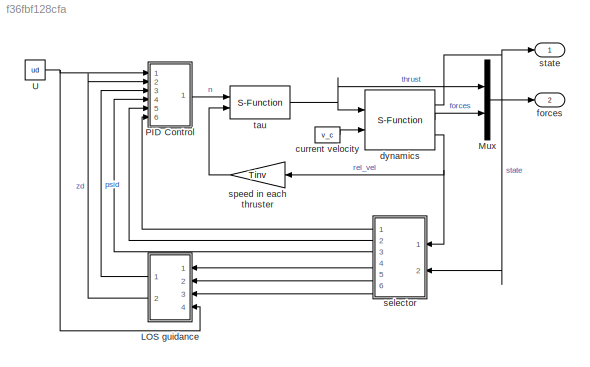
MODEL slx_f36fbf128cfa
KIND model
CONFIG AbsTol = auto
CONFIG EnableMultiTasking = off
CONFIG FixedStep = mdl.tStep
CONFIG MaxStep = auto
CONFIG MinStep = auto
CONFIG RelTol = 1e-3
CONFIG SampleTimeConstraint = Unconstrained
CONFIG Solver = ode4
CONFIG SolverName = ode4
CONFIG StartTime = 0.0
CONFIG StopTime = 10.0
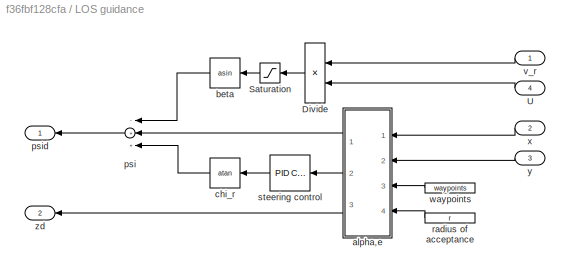
BLOCK [SubSystem] LOS guidance
  Ports = [4, 2]
  RequestExecContextInheritance = off
  Variant = off
BLOCK [Product] LOS guidance/Divide
  InputSameDT = off
  Inputs = */
  OutDataTypeStr = Inherit: Inherit via internal rule
  Ports = [2, 1]
  RndMeth = Floor
  SaturateOnIntegerOverflow = off
BLOCK [Saturate] LOS guidance/Saturation
  InputPortMap = u0
  LowerLimit = -1
  Ports = [1, 1]
  UpperLimit = 1
BLOCK [Inport] LOS guidance/U
  IconDisplay = Port number
  Port = 4
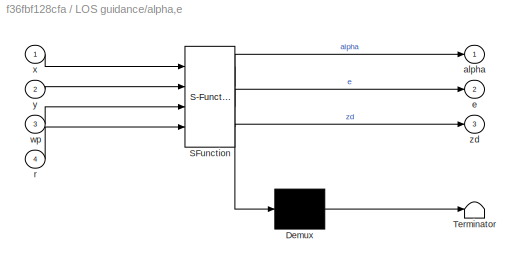
BLOCK [SubSystem] LOS guidance/alpha,e
  ErrorFcn = Stateflow.Translate.translate
  PermitHierarchicalResolution = ExplicitOnly
  Ports = [4, 3]
  RequestExecContextInheritance = off
  SFBlockType = MATLAB Function
  TreatAsAtomicUnit = on
  Variant = off
BLOCK [Demux] LOS guidance/alpha,e/ Demux 
  Outputs = 1
  Ports = [1, 1]
BLOCK [S-Function] LOS guidance/alpha,e/ SFunction 
  EnableBusSupport = on
  FunctionName = sf_sfun
  PortCounts = [4 4]
  Ports = [4, 4]
  SFcnIsStateOwnerBlock = off
  SFunctionDeploymentMode = off
  Tag = Stateflow S-Function rovSim_los 1
BLOCK [Terminator] LOS guidance/alpha,e/ Terminator 
BLOCK [Outport] LOS guidance/alpha,e/alpha
  IconDisplay = Port number
BLOCK [Outport] LOS guidance/alpha,e/e
  IconDisplay = Port number
  Port = 2
BLOCK [Inport] LOS guidance/alpha,e/r
  IconDisplay = Port number
  Port = 4
BLOCK [Inport] LOS guidance/alpha,e/wp
  IconDisplay = Port number
  Port = 3
BLOCK [Inport] LOS guidance/alpha,e/x
  IconDisplay = Port number
BLOCK [Inport] LOS guidance/alpha,e/y
  IconDisplay = Port number
  Port = 2
BLOCK [Outport] LOS guidance/alpha,e/zd
  IconDisplay = Port number
  Port = 3
BLOCK [Trigonometry] LOS guidance/beta
  Operator = asin
  Ports = [1, 1]
BLOCK [Trigonometry] LOS guidance/chi_r
  Operator = atan
  Ports = [1, 1]
BLOCK [Sum] LOS guidance/psi
  InputSameDT = off
  Inputs = -++
  OutDataTypeStr = Inherit: Inherit via internal rule
  Ports = [3, 1]
  SaturateOnIntegerOverflow = off
BLOCK [Outport] LOS guidance/psid
  IconDisplay = Port number
BLOCK [Constant] LOS guidance/radius of acceptance
  Value = r
BLOCK [Reference] LOS guidance/steering control  REF=simulink/Continuous/PID Controller
  Ports = [1, 1]
  SourceBlock = simulink/Continuous/PID Controller
  SourceProductBaseCode = SL
  SourceProductName = Simulink
  SourceType = PID 1dof
BLOCK [Inport] LOS guidance/v_r
  IconDisplay = Port number
BLOCK [Constant] LOS guidance/waypoints
  Value = waypoints
BLOCK [Inport] LOS guidance/x
  IconDisplay = Port number
  Port = 2
BLOCK [Inport] LOS guidance/y
  IconDisplay = Port number
  Port = 3
BLOCK [Outport] LOS guidance/zd
  IconDisplay = Port number
  Port = 2
BLOCK [Mux] Mux
  DisplayOption = bar
  Inputs = [6,18]
  Ports = [2, 1]
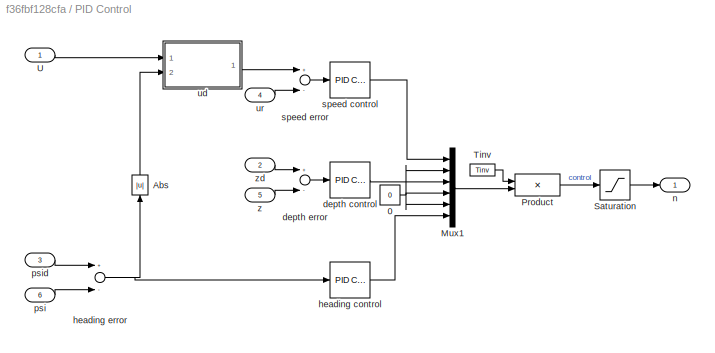
BLOCK [SubSystem] PID Control
  Ports = [6, 1]
  RequestExecContextInheritance = off
  Variant = off
BLOCK [Constant] PID Control/0
  Value = 0
BLOCK [Abs] PID Control/Abs
  SaturateOnIntegerOverflow = off
BLOCK [Mux] PID Control/Mux1
  DisplayOption = bar
  Inputs = 6
  Ports = [6, 1]
BLOCK [Product] PID Control/Product
  InputSameDT = off
  Multiplication = Matrix(*)
  OutDataTypeStr = Inherit: Inherit via internal rule
  Ports = [2, 1]
  RndMeth = Floor
  SaturateOnIntegerOverflow = off
BLOCK [Saturate] PID Control/Saturation
  InputPortMap = u0
  LowerLimit = -n_max
  Ports = [1, 1]
  UpperLimit = n_max
BLOCK [Constant] PID Control/Tinv
  Value = Tinv
  VectorParams1D = off
BLOCK [Inport] PID Control/U
  IconDisplay = Port number
BLOCK [Reference] PID Control/depth control  REF=simulink/Continuous/PID Controller
  Ports = [1, 1]
  SourceBlock = simulink/Continuous/PID Controller
  SourceProductBaseCode = SL
  SourceProductName = Simulink
  SourceType = PID 1dof
BLOCK [Sum] PID Control/depth error
  InputSameDT = off
  Inputs = +-
  OutDataTypeStr = Inherit: Inherit via internal rule
  Ports = [2, 1]
  SaturateOnIntegerOverflow = off
BLOCK [Reference] PID Control/heading control  REF=simulink/Continuous/PID Controller
  Ports = [1, 1]
  SourceBlock = simulink/Continuous/PID Controller
  SourceProductBaseCode = SL
  SourceProductName = Simulink
  SourceType = PID 1dof
BLOCK [Sum] PID Control/heading error
  InputSameDT = off
  Inputs = +-
  OutDataTypeStr = Inherit: Inherit via internal rule
  Ports = [2, 1]
  SaturateOnIntegerOverflow = off
BLOCK [Outport] PID Control/n
  IconDisplay = Port number
BLOCK [Inport] PID Control/psi
  IconDisplay = Port number
  Port = 6
BLOCK [Inport] PID Control/psid
  IconDisplay = Port number
  Port = 3
BLOCK [Reference] PID Control/speed control  REF=simulink/Continuous/PID Controller
  Ports = [1, 1]
  SourceBlock = simulink/Continuous/PID Controller
  SourceProductBaseCode = SL
  SourceProductName = Simulink
  SourceType = PID 1dof
BLOCK [Sum] PID Control/speed error
  InputSameDT = off
  Inputs = +-
  OutDataTypeStr = Inherit: Inherit via internal rule
  Ports = [2, 1]
  SaturateOnIntegerOverflow = off
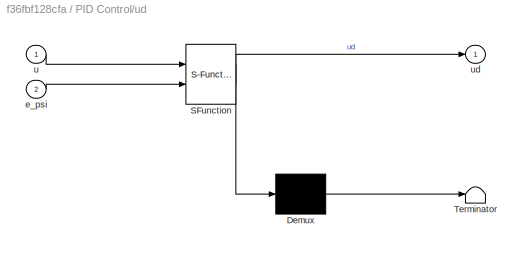
BLOCK [SubSystem] PID Control/ud
  ErrorFcn = Stateflow.Translate.translate
  PermitHierarchicalResolution = ExplicitOnly
  Ports = [2, 1]
  RequestExecContextInheritance = off
  SFBlockType = MATLAB Function
  TreatAsAtomicUnit = on
  Variant = off
BLOCK [Demux] PID Control/ud/ Demux 
  Outputs = 1
  Ports = [1, 1]
BLOCK [S-Function] PID Control/ud/ SFunction 
  EnableBusSupport = on
  FunctionName = sf_sfun
  PortCounts = [2 2]
  Ports = [2, 2]
  SFcnIsStateOwnerBlock = off
  SFunctionDeploymentMode = off
  Tag = Stateflow S-Function rovSim_los 2
BLOCK [Terminator] PID Control/ud/ Terminator 
BLOCK [Inport] PID Control/ud/e_psi
  IconDisplay = Port number
  Port = 2
BLOCK [Inport] PID Control/ud/u
  IconDisplay = Port number
BLOCK [Outport] PID Control/ud/ud
  IconDisplay = Port number
BLOCK [Inport] PID Control/ur
  IconDisplay = Port number
  Port = 4
BLOCK [Inport] PID Control/z
  IconDisplay = Port number
  Port = 5
BLOCK [Inport] PID Control/zd
  IconDisplay = Port number
  Port = 2
BLOCK [Constant] U
  Value = ud
BLOCK [Constant] current velocity
  Value = v_c
BLOCK [S-Function] dynamics
  EnableBusSupport = off
  FunctionName = uuv_dynamics
  Parameters = rov.weight,rov.buoyancy,rov.G,rov.B,ics,rov.inv_mass',rov.M_A',rov.M_RB',rov.D_L',rov.D_q'
  Ports = [2, 3]
  SFcnIsStateOwnerBlock = off
  SFunctionDeploymentMode = off
BLOCK [Outport] forces
  IconDisplay = Port number
  Port = 2
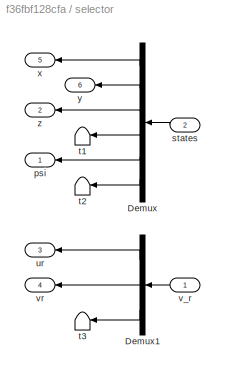
BLOCK [SubSystem] selector
  Ports = [2, 6]
  RequestExecContextInheritance = off
  Variant = off
BLOCK [Demux] selector/Demux
  DisplayOption = bar
  Outputs = [1,1,1,2,1,6]
  Ports = [1, 6]
BLOCK [Demux] selector/Demux1
  DisplayOption = bar
  Outputs = [1,1,4]
  Ports = [1, 3]
BLOCK [Outport] selector/psi
  IconDisplay = Port number
BLOCK [Inport] selector/states
  IconDisplay = Port number
  Port = 2
BLOCK [Terminator] selector/t1
BLOCK [Terminator] selector/t2
BLOCK [Terminator] selector/t3
BLOCK [Outport] selector/ur
  IconDisplay = Port number
  Port = 3
BLOCK [Inport] selector/v_r
  IconDisplay = Port number
BLOCK [Outport] selector/vr
  IconDisplay = Port number
  Port = 4
BLOCK [Outport] selector/x
  IconDisplay = Port number
  Port = 5
BLOCK [Outport] selector/y
  IconDisplay = Port number
  Port = 6
BLOCK [Outport] selector/z
  IconDisplay = Port number
  Port = 2
BLOCK [Gain] speed in each thruster
  Gain = Tinv
  Multiplication = Matrix(K*u)
  OutDataTypeStr = Inherit: Inherit via internal rule
  ParamDataTypeStr = Inherit: Inherit via internal rule
  SaturateOnIntegerOverflow = off
BLOCK [Outport] state
  IconDisplay = Port number
BLOCK [S-Function] tau
  EnableBusSupport = off
  FunctionName = rov_thrust
  Parameters = rov.density,rov.prop_diam,rov.K_T,rov.theta,rov.T'
  Ports = [2, 1]
  SFcnIsStateOwnerBlock = off
  SFunctionDeploymentMode = off
LINE LOS guidance/Divide:1 -> LOS guidance/Saturation:1
LINE LOS guidance/Saturation:1 -> LOS guidance/beta:1
LINE LOS guidance/U:1 -> LOS guidance/Divide:2
LINE LOS guidance/alpha,e:1 -> LOS guidance/psi:2
LINE LOS guidance/alpha,e:2 -> LOS guidance/steering control:1
LINE LOS guidance/alpha,e:3 -> LOS guidance/zd:1
LINE LOS guidance/beta:1 -> LOS guidance/psi:1
LINE LOS guidance/chi_r:1 -> LOS guidance/psi:3
LINE LOS guidance/psi:1 -> LOS guidance/psid:1
LINE LOS guidance/radius of acceptance:1 -> LOS guidance/alpha,e:4
LINE LOS guidance/steering control:1 -> LOS guidance/chi_r:1
LINE LOS guidance/v_r:1 -> LOS guidance/Divide:1
LINE LOS guidance/waypoints:1 -> LOS guidance/alpha,e:3
LINE LOS guidance/x:1 -> LOS guidance/alpha,e:1
LINE LOS guidance/y:1 -> LOS guidance/alpha,e:2
LINE LOS guidance:1 -> PID Control:3
LINE LOS guidance:2 -> PID Control:2
LINE Mux:1 -> forces:1
NET PID Control/0:1 -> PID Control/Mux1:2, PID Control/Mux1:4, PID Control/Mux1:5
LINE PID Control/Abs:1 -> PID Control/ud:2
LINE PID Control/Mux1:1 -> PID Control/Product:2
LINE PID Control/Product:1 -> PID Control/Saturation:1
LINE PID Control/Saturation:1 -> PID Control/n:1
LINE PID Control/Tinv:1 -> PID Control/Product:1
LINE PID Control/U:1 -> PID Control/ud:1
LINE PID Control/depth control:1 -> PID Control/Mux1:3
LINE PID Control/depth error:1 -> PID Control/depth control:1
LINE PID Control/heading control:1 -> PID Control/Mux1:6
NET PID Control/heading error:1 -> PID Control/Abs:1, PID Control/heading control:1
LINE PID Control/psi:1 -> PID Control/heading error:2
LINE PID Control/psid:1 -> PID Control/heading error:1
LINE PID Control/speed control:1 -> PID Control/Mux1:1
LINE PID Control/speed error:1 -> PID Control/speed control:1
LINE PID Control/ud:1 -> PID Control/speed error:1
LINE PID Control/ur:1 -> PID Control/speed error:2
LINE PID Control/z:1 -> PID Control/depth error:2
LINE PID Control/zd:1 -> PID Control/depth error:1
LINE PID Control:1 -> tau:1
NET U:1 -> LOS guidance:4, PID Control:1
LINE current velocity:1 -> dynamics:2
NET dynamics:1 -> selector:2, state:1
LINE dynamics:2 -> Mux:2
NET dynamics:3 -> selector:1, speed in each thruster:1
LINE selector/Demux1:1 -> selector/ur:1
LINE selector/Demux1:2 -> selector/vr:1
LINE selector/Demux1:3 -> selector/t3:1
LINE selector/Demux:1 -> selector/x:1
LINE selector/Demux:2 -> selector/y:1
LINE selector/Demux:3 -> selector/z:1
LINE selector/Demux:4 -> selector/t1:1
LINE selector/Demux:5 -> selector/psi:1
LINE selector/Demux:6 -> selector/t2:1
LINE selector/states:1 -> selector/Demux:1
LINE selector/v_r:1 -> selector/Demux1:1
LINE selector:1 -> PID Control:6
LINE selector:2 -> PID Control:5
LINE selector:3 -> PID Control:4
LINE selector:4 -> LOS guidance:1
LINE selector:5 -> LOS guidance:2
LINE selector:6 -> LOS guidance:3
LINE speed in each thruster:1 -> tau:2
NET tau:1 -> Mux:1, dynamics:1
note: NET lines group one-source signal fan-out (src -> all destinations, sorted); 1:1 wires keep LINE
CHART LOS guidance/alpha,e states=1 transitions=1
  STATE_LABEL 'eML_blk_kernel()'
  STATE_LABEL 'SCRIPT:\nfunction [alpha,e,zd] = fcn(x,y,wp,r)\n% fcn.m     <email>      06/10/2017\n%%%%%%%%%%%%%%%%%%%%%%%%%%%%%%%%%%%%%%%%%%%%%%%%%%%%%%%%%%%%%%%%%%%%%%%%%%%\n% This function returns the angle alpha and the cross-track error.\n% Input:\n% x:  x-position;\n% y:  y-position;\n% wp: waypoints;\n% r:  radius of acceptance.\n%%%%%%%%%%%%%%%%%%%%%%%%%%%%%%%%%%%%%%%%%%%%%%%%%%%%%%%%%%%%%%%%%%%%%%%%%%%\n\npersiste...<+486ch>'
CHART PID Control/ud states=1 transitions=1
  STATE_LABEL 'eML_blk_kernel()'
  STATE_LABEL 'SCRIPT:\nfunction ud = fcn(u,e_psi)\n\npi2 = pi/2;\n\nif e_psi<pi2\n    ud = u*(1-e_psi/pi2);\nelse\n    ud = 0;\nend\n\nend\n\n'
